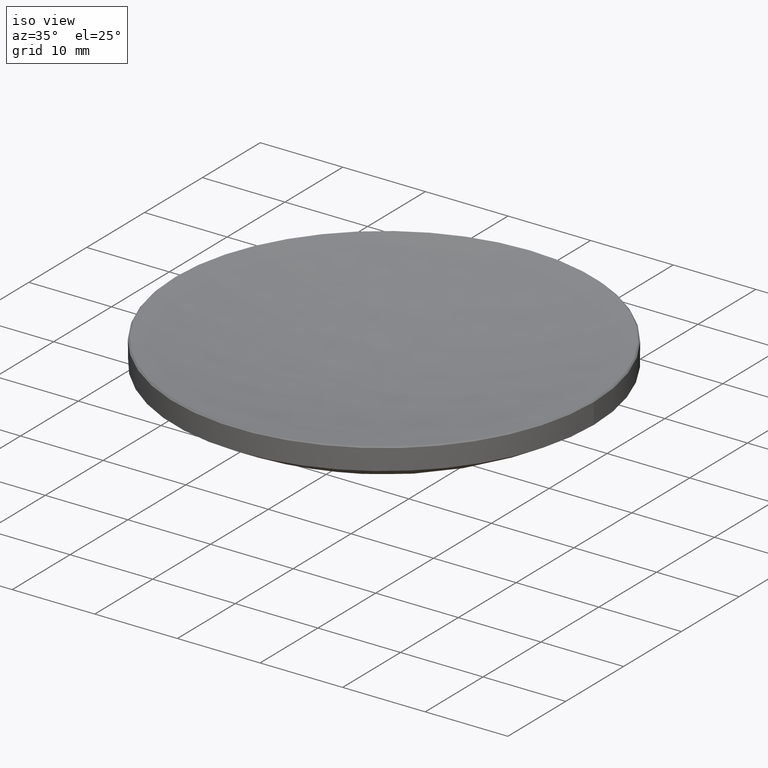
[diagram: clean part render]
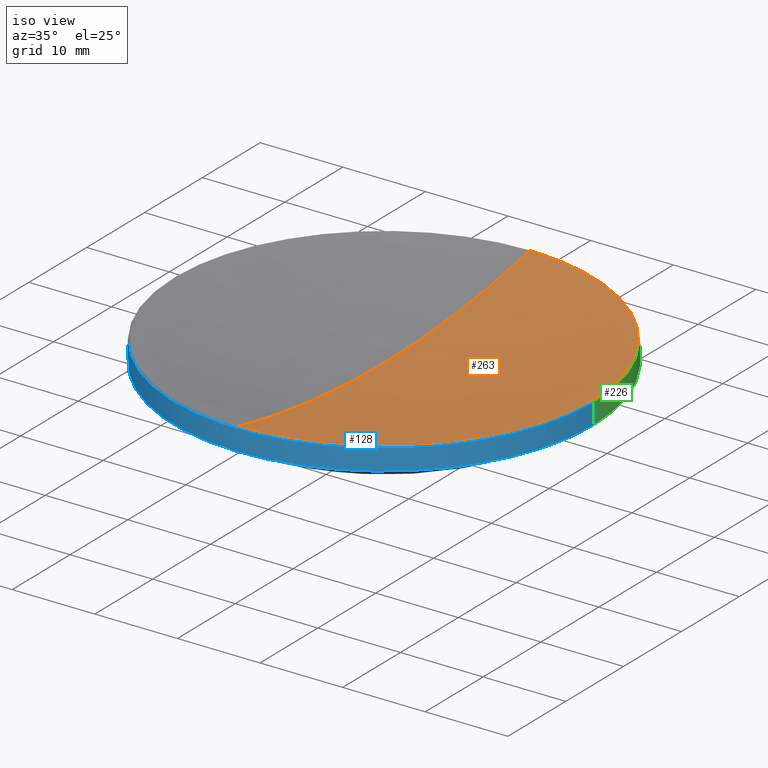
[diagram: same view with three faces highlighted in distinct colors, each labeled with its STEP entity id]
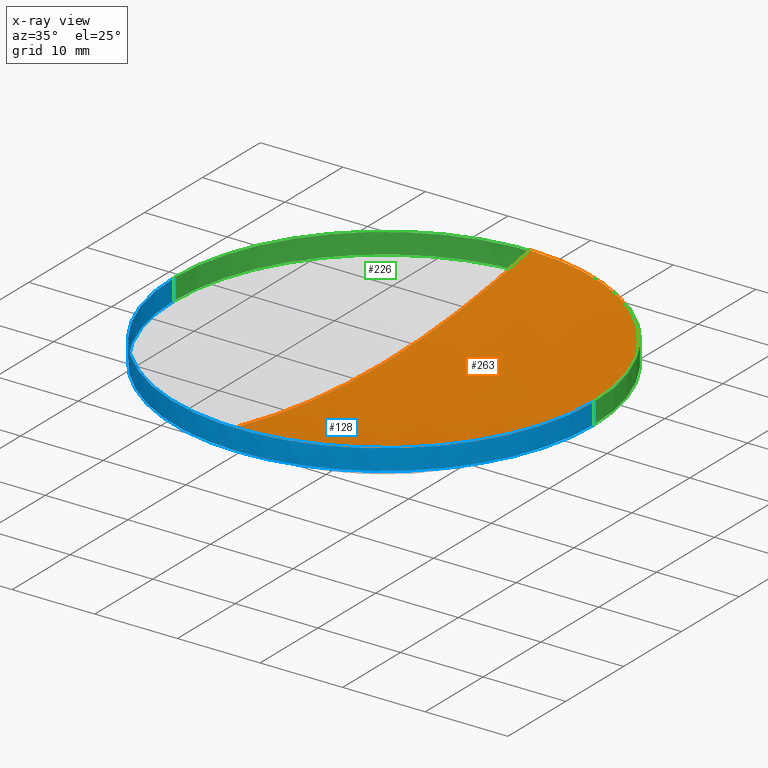
[diagram: x-ray of the same camera — body ghosted, the three highlighted faces saturated]
A machine part, iso view with three faces highlighted in distinct colors.
The next image is the same camera in x-ray (body ghosted, the three faces saturated) — at least one of them is partly hidden behind the body in this view.
Their STEP definitions:

[orange] entity #263 — the highlighted spherical surface has radius 119.32 mm.
#4 = DIRECTION ( 'NONE',  ( 0.000000000000000000, 1.000000000000000000, 0.000000000000000000 ) ) ;
#13 = EDGE_CURVE ( 'NONE', #264, #82, #73, .T. ) ;
#16 = AXIS2_PLACEMENT_3D ( 'NONE', #271, #91, #4 ) ;
#18 = EDGE_CURVE ( 'NONE', #82, #80, #66, .T. ) ;
#27 = CARTESIAN_POINT ( 'NONE',  ( 0.000000000000000000, 0.000000000000000000, 15.66432118436585164 ) ) ;
#29 = DIRECTION ( 'NONE',  ( 0.000000000000000000, 0.000000000000000000, -1.000000000000000000 ) ) ;
#30 = DIRECTION ( 'NONE',  ( -0.000000000000000000, -0.000000000000000000, 1.000000000000000000 ) ) ;
#44 = CARTESIAN_POINT ( 'NONE',  ( 25.23567881563414872, 3.100541099210989890E-15, 15.66432118436585164 ) ) ;
#58 = CIRCLE ( 'NONE', #62, 25.23567881563414517 ) ;
#62 = AXIS2_PLACEMENT_3D ( 'NONE', #27, #30, #181 ) ;
#63 = DIRECTION ( 'NONE',  ( -1.224646799147353207E-16, -1.000000000000000000, 0.000000000000000000 ) ) ;
#66 = CIRCLE ( 'NONE', #165, 25.23567881563414517 ) ;
#71 = CARTESIAN_POINT ( 'NONE',  ( 0.000000000000000000, 25.23567881563418425, 15.66432118436585164 ) ) ;
#73 = CIRCLE ( 'NONE', #155, 119.3200000000000074 ) ;
#80 = VERTEX_POINT ( 'NONE', #44 ) ;
#82 = VERTEX_POINT ( 'NONE', #218 ) ;
#91 = DIRECTION ( 'NONE',  ( -1.000000000000000000, 0.000000000000000000, 0.000000000000000000 ) ) ;
#121 = DIRECTION ( 'NONE',  ( 1.000000000000000000, 0.000000000000000000, 0.000000000000000000 ) ) ;
#140 = EDGE_LOOP ( 'NONE', ( #280, #255, #145, #189 ) ) ;
#144 = DIRECTION ( 'NONE',  ( -0.000000000000000000, -0.000000000000000000, 1.000000000000000000 ) ) ;
#145 = ORIENTED_EDGE ( 'NONE', *, *, #18, .T. ) ;
#148 = CARTESIAN_POINT ( 'NONE',  ( 0.000000000000000000, 0.000000000000000000, 15.66432118436585164 ) ) ;
#154 = CARTESIAN_POINT ( 'NONE',  ( 0.000000000000000000, 7.306242803713110362E-15, 12.96517229905352941 ) ) ;
#155 = AXIS2_PLACEMENT_3D ( 'NONE', #214, #171, #63 ) ;
#165 = AXIS2_PLACEMENT_3D ( 'NONE', #148, #144, #121 ) ;
#171 = DIRECTION ( 'NONE',  ( -1.000000000000000000, 1.224646799147353207E-16, 0.000000000000000000 ) ) ;
#181 = DIRECTION ( 'NONE',  ( 1.000000000000000000, 0.000000000000000000, 0.000000000000000000 ) ) ;
#189 = ORIENTED_EDGE ( 'NONE', *, *, #192, .T. ) ;
#192 = EDGE_CURVE ( 'NONE', #80, #233, #58, .T. ) ;
#196 = AXIS2_PLACEMENT_3D ( 'NONE', #220, #242, #29 ) ;
#198 = SPHERICAL_SURFACE ( 'NONE', #16, 119.3200000000000074 ) ;
#200 = FACE_OUTER_BOUND ( 'NONE', #140, .T. ) ;
#214 = CARTESIAN_POINT ( 'NONE',  ( 0.000000000000000000, 0.000000000000000000, 132.2851722990535279 ) ) ;
#218 = CARTESIAN_POINT ( 'NONE',  ( -3.090479328587706859E-15, -25.23567881563418425, 15.66432118436585164 ) ) ;
#220 = CARTESIAN_POINT ( 'NONE',  ( 0.000000000000000000, 0.000000000000000000, 132.2851722990535279 ) ) ;
#233 = VERTEX_POINT ( 'NONE', #71 ) ;
#239 = EDGE_CURVE ( 'NONE', #264, #233, #257, .T. ) ;
#242 = DIRECTION ( 'NONE',  ( 1.000000000000000000, 0.000000000000000000, 0.000000000000000000 ) ) ;
#255 = ORIENTED_EDGE ( 'NONE', *, *, #13, .T. ) ;
#257 = CIRCLE ( 'NONE', #196, 119.3200000000000074 ) ;
#263 = ADVANCED_FACE ( 'NONE', ( #200 ), #198, .F. ) ;
#264 = VERTEX_POINT ( 'NONE', #154 ) ;
#271 = CARTESIAN_POINT ( 'NONE',  ( 0.000000000000000000, 0.000000000000000000, 132.2851722990535279 ) ) ;
#280 = ORIENTED_EDGE ( 'NONE', *, *, #239, .F. ) ;

[blue] entity #128 — the highlighted cylindrical surface (partial cylindrical patch) has radius 25.4 mm, axis along (-0, -0, -1).
#6 = DIRECTION ( 'NONE',  ( -0.000000000000000000, -0.000000000000000000, -1.000000000000000000 ) ) ;
#9 = EDGE_CURVE ( 'NONE', #229, #209, #201, .T. ) ;
#14 = VERTEX_POINT ( 'NONE', #167 ) ;
#21 = VERTEX_POINT ( 'NONE', #211 ) ;
#26 = DIRECTION ( 'NONE',  ( -0.000000000000000000, -0.000000000000000000, 1.000000000000000000 ) ) ;
#31 = EDGE_CURVE ( 'NONE', #209, #14, #236, .T. ) ;
#40 = CARTESIAN_POINT ( 'NONE',  ( 0.000000000000000000, 0.000000000000000000, 15.49999999999997158 ) ) ;
#42 = AXIS2_PLACEMENT_3D ( 'NONE', #195, #216, #173 ) ;
#54 = CARTESIAN_POINT ( 'NONE',  ( 25.39999999999999858, 3.110602869834276865E-15, 15.49999999999997158 ) ) ;
#67 = FACE_OUTER_BOUND ( 'NONE', #170, .T. ) ;
#68 = DIRECTION ( 'NONE',  ( -0.000000000000000000, -0.000000000000000000, -1.000000000000000000 ) ) ;
#81 = ORIENTED_EDGE ( 'NONE', *, *, #164, .F. ) ;
#90 = CYLINDRICAL_SURFACE ( 'NONE', #244, 25.39999999999999858 ) ;
#95 = ORIENTED_EDGE ( 'NONE', *, *, #106, .T. ) ;
#97 = ORIENTED_EDGE ( 'NONE', *, *, #159, .T. ) ;
#98 = VERTEX_POINT ( 'NONE', #193 ) ;
#102 = DIRECTION ( 'NONE',  ( 0.000000000000000000, 0.000000000000000000, -1.000000000000000000 ) ) ;
#106 = EDGE_CURVE ( 'NONE', #14, #21, #108, .T. ) ;
#108 = CIRCLE ( 'NONE', #42, 25.39999999999999503 ) ;
#115 = CARTESIAN_POINT ( 'NONE',  ( 25.39999999999999858, 3.110602869834276865E-15, 20.00000000000000000 ) ) ;
#117 = AXIS2_PLACEMENT_3D ( 'NONE', #40, #102, #190 ) ;
#118 = ORIENTED_EDGE ( 'NONE', *, *, #31, .T. ) ;
#125 = CARTESIAN_POINT ( 'NONE',  ( -25.39999999999999858, 0.000000000000000000, 20.00000000000000000 ) ) ;
#126 = DIRECTION ( 'NONE',  ( -0.000000000000000000, -0.000000000000000000, -1.000000000000000000 ) ) ;
#128 = ADVANCED_FACE ( 'NONE', ( #67 ), #90, .T. ) ;
#136 = LINE ( 'NONE', #115, #256 ) ;
#152 = DIRECTION ( 'NONE',  ( -1.000000000000000000, 0.000000000000000000, 0.000000000000000000 ) ) ;
#153 = DIRECTION ( 'NONE',  ( 1.000000000000000000, 0.000000000000000000, 0.000000000000000000 ) ) ;
#159 = EDGE_CURVE ( 'NONE', #21, #98, #224, .T. ) ;
#160 = CARTESIAN_POINT ( 'NONE',  ( -25.39999999999999858, 0.000000000000000000, 15.49999999999997158 ) ) ;
#164 = EDGE_CURVE ( 'NONE', #229, #98, #136, .T. ) ;
#167 = CARTESIAN_POINT ( 'NONE',  ( -25.39999999999999503, 0.000000000000000000, 13.00000000000000000 ) ) ;
#170 = EDGE_LOOP ( 'NONE', ( #81, #227, #118, #95, #97 ) ) ;
#173 = DIRECTION ( 'NONE',  ( 1.000000000000000000, 0.000000000000000000, 0.000000000000000000 ) ) ;
#178 = AXIS2_PLACEMENT_3D ( 'NONE', #240, #26, #153 ) ;
#190 = DIRECTION ( 'NONE',  ( 1.000000000000000000, 0.000000000000000000, 0.000000000000000000 ) ) ;
#193 = CARTESIAN_POINT ( 'NONE',  ( 25.39999999999999503, 3.110602869834276471E-15, 13.00000000000000000 ) ) ;
#195 = CARTESIAN_POINT ( 'NONE',  ( 0.000000000000000000, 0.000000000000000000, 13.00000000000000000 ) ) ;
#199 = CARTESIAN_POINT ( 'NONE',  ( 0.000000000000000000, 0.000000000000000000, 20.00000000000000000 ) ) ;
#201 = CIRCLE ( 'NONE', #117, 25.39999999999999858 ) ;
#209 = VERTEX_POINT ( 'NONE', #160 ) ;
#211 = CARTESIAN_POINT ( 'NONE',  ( -3.110602869834276865E-15, -25.39999999999999858, 12.99999999999999822 ) ) ;
#216 = DIRECTION ( 'NONE',  ( -0.000000000000000000, -0.000000000000000000, 1.000000000000000000 ) ) ;
#224 = CIRCLE ( 'NONE', #178, 25.39999999999999503 ) ;
#227 = ORIENTED_EDGE ( 'NONE', *, *, #9, .T. ) ;
#229 = VERTEX_POINT ( 'NONE', #54 ) ;
#236 = LINE ( 'NONE', #125, #262 ) ;
#240 = CARTESIAN_POINT ( 'NONE',  ( 0.000000000000000000, 0.000000000000000000, 13.00000000000000000 ) ) ;
#244 = AXIS2_PLACEMENT_3D ( 'NONE', #199, #68, #152 ) ;
#256 = VECTOR ( 'NONE', #6, 1000.000000000000000 ) ;
#262 = VECTOR ( 'NONE', #126, 1000.000000000000000 ) ;

[green] entity #226 — the highlighted cylindrical surface (partial cylindrical patch) has radius 25.4 mm, axis along (-0, -0, -1).
#6 = DIRECTION ( 'NONE',  ( -0.000000000000000000, -0.000000000000000000, -1.000000000000000000 ) ) ;
#8 = CARTESIAN_POINT ( 'NONE',  ( 0.000000000000000000, 0.000000000000000000, 13.00000000000000000 ) ) ;
#14 = VERTEX_POINT ( 'NONE', #167 ) ;
#15 = ORIENTED_EDGE ( 'NONE', *, *, #46, .T. ) ;
#25 = AXIS2_PLACEMENT_3D ( 'NONE', #105, #107, #268 ) ;
#31 = EDGE_CURVE ( 'NONE', #209, #14, #236, .T. ) ;
#46 = EDGE_CURVE ( 'NONE', #98, #119, #212, .T. ) ;
#54 = CARTESIAN_POINT ( 'NONE',  ( 25.39999999999999858, 3.110602869834276865E-15, 15.49999999999997158 ) ) ;
#64 = EDGE_CURVE ( 'NONE', #209, #229, #103, .T. ) ;
#65 = CARTESIAN_POINT ( 'NONE',  ( 0.000000000000000000, 25.39999999999999858, 12.99999999999999822 ) ) ;
#77 = ORIENTED_EDGE ( 'NONE', *, *, #64, .T. ) ;
#79 = AXIS2_PLACEMENT_3D ( 'NONE', #85, #267, #238 ) ;
#84 = ORIENTED_EDGE ( 'NONE', *, *, #164, .T. ) ;
#85 = CARTESIAN_POINT ( 'NONE',  ( 0.000000000000000000, 0.000000000000000000, 13.00000000000000000 ) ) ;
#92 = DIRECTION ( 'NONE',  ( 1.000000000000000000, 0.000000000000000000, 0.000000000000000000 ) ) ;
#98 = VERTEX_POINT ( 'NONE', #193 ) ;
#101 = EDGE_LOOP ( 'NONE', ( #77, #84, #15, #185, #186 ) ) ;
#103 = CIRCLE ( 'NONE', #25, 25.39999999999999858 ) ;
#105 = CARTESIAN_POINT ( 'NONE',  ( 0.000000000000000000, 0.000000000000000000, 15.49999999999997158 ) ) ;
#107 = DIRECTION ( 'NONE',  ( 0.000000000000000000, 0.000000000000000000, -1.000000000000000000 ) ) ;
#115 = CARTESIAN_POINT ( 'NONE',  ( 25.39999999999999858, 3.110602869834276865E-15, 20.00000000000000000 ) ) ;
#119 = VERTEX_POINT ( 'NONE', #65 ) ;
#123 = AXIS2_PLACEMENT_3D ( 'NONE', #203, #177, #249 ) ;
#125 = CARTESIAN_POINT ( 'NONE',  ( -25.39999999999999858, 0.000000000000000000, 20.00000000000000000 ) ) ;
#126 = DIRECTION ( 'NONE',  ( -0.000000000000000000, -0.000000000000000000, -1.000000000000000000 ) ) ;
#136 = LINE ( 'NONE', #115, #256 ) ;
#157 = CYLINDRICAL_SURFACE ( 'NONE', #123, 25.39999999999999858 ) ;
#160 = CARTESIAN_POINT ( 'NONE',  ( -25.39999999999999858, 0.000000000000000000, 15.49999999999997158 ) ) ;
#164 = EDGE_CURVE ( 'NONE', #229, #98, #136, .T. ) ;
#167 = CARTESIAN_POINT ( 'NONE',  ( -25.39999999999999503, 0.000000000000000000, 13.00000000000000000 ) ) ;
#177 = DIRECTION ( 'NONE',  ( -0.000000000000000000, -0.000000000000000000, -1.000000000000000000 ) ) ;
#182 = FACE_OUTER_BOUND ( 'NONE', #101, .T. ) ;
#185 = ORIENTED_EDGE ( 'NONE', *, *, #215, .T. ) ;
#186 = ORIENTED_EDGE ( 'NONE', *, *, #31, .F. ) ;
#193 = CARTESIAN_POINT ( 'NONE',  ( 25.39999999999999503, 3.110602869834276471E-15, 13.00000000000000000 ) ) ;
#203 = CARTESIAN_POINT ( 'NONE',  ( 0.000000000000000000, 0.000000000000000000, 20.00000000000000000 ) ) ;
#209 = VERTEX_POINT ( 'NONE', #160 ) ;
#212 = CIRCLE ( 'NONE', #79, 25.39999999999999503 ) ;
#215 = EDGE_CURVE ( 'NONE', #119, #14, #266, .T. ) ;
#217 = AXIS2_PLACEMENT_3D ( 'NONE', #8, #269, #92 ) ;
#226 = ADVANCED_FACE ( 'NONE', ( #182 ), #157, .T. ) ;
#229 = VERTEX_POINT ( 'NONE', #54 ) ;
#236 = LINE ( 'NONE', #125, #262 ) ;
#238 = DIRECTION ( 'NONE',  ( 1.000000000000000000, 0.000000000000000000, 0.000000000000000000 ) ) ;
#249 = DIRECTION ( 'NONE',  ( -1.000000000000000000, 0.000000000000000000, 0.000000000000000000 ) ) ;
#256 = VECTOR ( 'NONE', #6, 1000.000000000000000 ) ;
#262 = VECTOR ( 'NONE', #126, 1000.000000000000000 ) ;
#266 = CIRCLE ( 'NONE', #217, 25.39999999999999503 ) ;
#267 = DIRECTION ( 'NONE',  ( -0.000000000000000000, -0.000000000000000000, 1.000000000000000000 ) ) ;
#268 = DIRECTION ( 'NONE',  ( 1.000000000000000000, 0.000000000000000000, 0.000000000000000000 ) ) ;
#269 = DIRECTION ( 'NONE',  ( -0.000000000000000000, -0.000000000000000000, 1.000000000000000000 ) ) ;